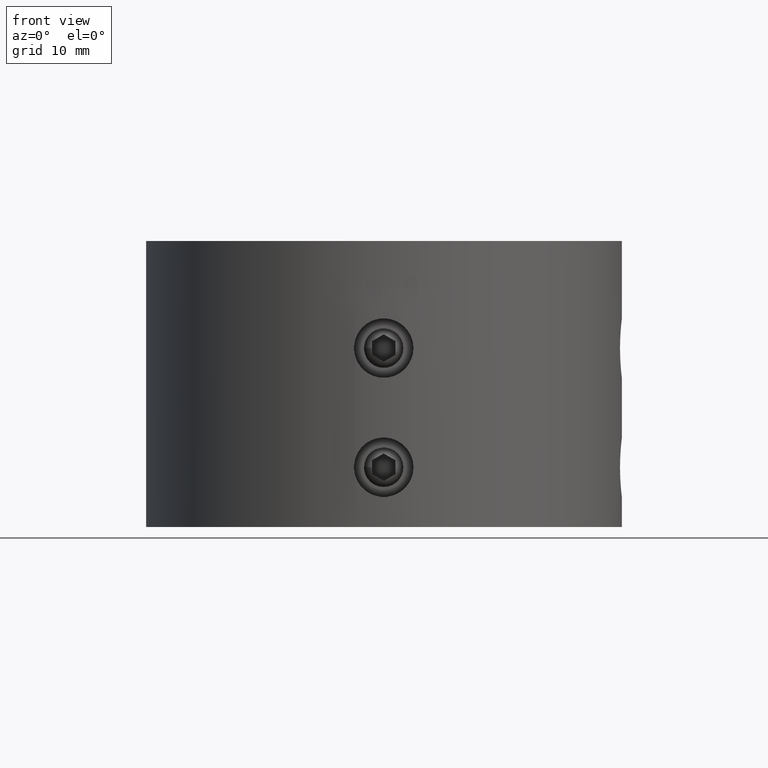
[diagram: clean part render]
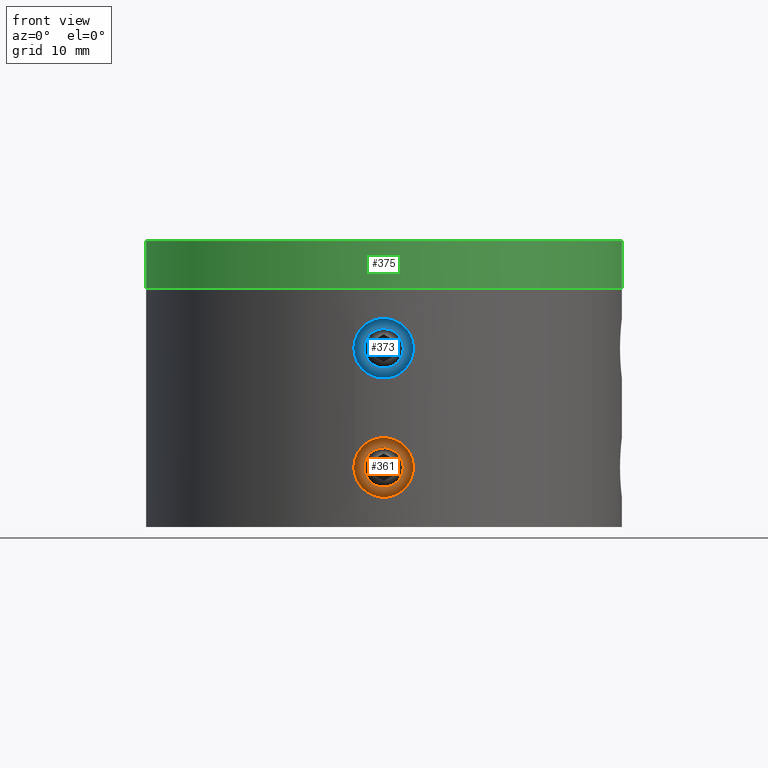
[diagram: same view with three faces highlighted in distinct colors, each labeled with its STEP entity id]
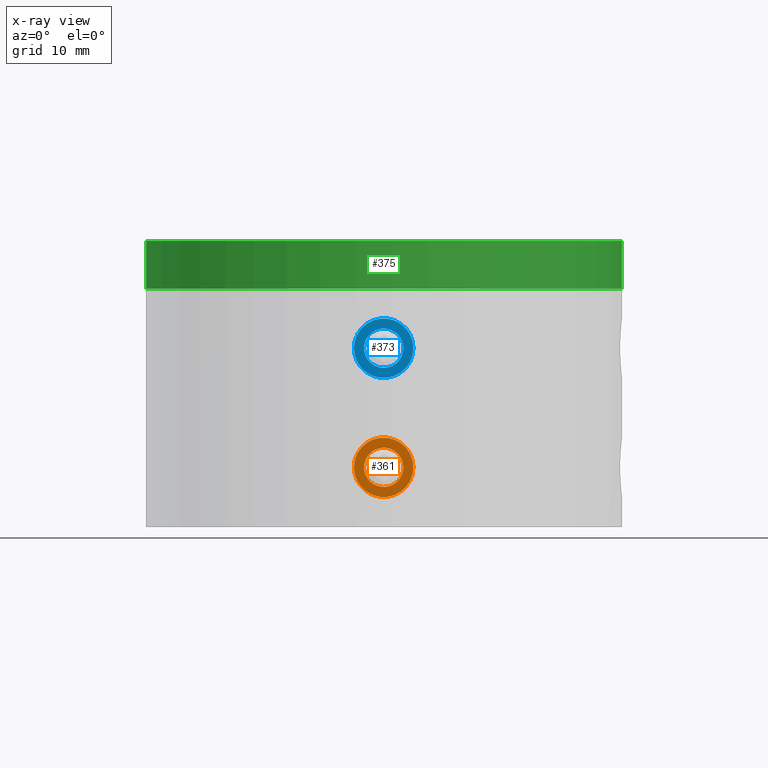
[diagram: x-ray of the same camera — body ghosted, the three highlighted faces saturated]
A machine part, front view with three faces highlighted in distinct colors.
The next image is the same camera in x-ray (body ghosted, the three faces saturated) — at least one of them is partly hidden behind the body in this view.
Their STEP definitions:

[orange] entity #361 — the highlighted planar face has unit normal (0, 1, 0).
#361 = ADVANCED_FACE( '', ( #440, #441 ), #442, .F. );
#440 = FACE_BOUND( '', #612, .T. );
#441 = FACE_OUTER_BOUND( '', #613, .T. );
#442 = PLANE( '', #614 );
#612 = EDGE_LOOP( '', ( #788 ) );
#613 = EDGE_LOOP( '', ( #789 ) );
#614 = AXIS2_PLACEMENT_3D( '', #790, #791, #792 );
#788 = ORIENTED_EDGE( '', *, *, #1193, .F. );
#789 = ORIENTED_EDGE( '', *, *, #1192, .F. );
#790 = CARTESIAN_POINT( '', ( 0.000000000000000, -15.0000000000000, -29.0000000000000 ) );
#791 = DIRECTION( '', ( 0.000000000000000, 1.00000000000000, 0.000000000000000 ) );
#792 = DIRECTION( '', ( 0.000000000000000, 0.000000000000000, -1.00000000000000 ) );
#1192 = EDGE_CURVE( '', #1310, #1310, #1311, .T. );
#1193 = EDGE_CURVE( '', #1312, #1312, #1313, .T. );
#1310 = VERTEX_POINT( '', #1754 );
#1311 = CIRCLE( '', #1755, 2.50000000000000 );
#1312 = VERTEX_POINT( '', #1756 );
#1313 = CIRCLE( '', #1757, 1.65000000000000 );
#1754 = CARTESIAN_POINT( '', ( 2.50000000000000, -15.0000000000000, -29.0000000000000 ) );
#1755 = AXIS2_PLACEMENT_3D( '', #2320, #2321, #2322 );
#1756 = CARTESIAN_POINT( '', ( 0.000000000000000, -15.0000000000000, -30.6500000000000 ) );
#1757 = AXIS2_PLACEMENT_3D( '', #2323, #2324, #2325 );
#2320 = CARTESIAN_POINT( '', ( 0.000000000000000, -15.0000000000000, -29.0000000000000 ) );
#2321 = DIRECTION( '', ( -0.000000000000000, 1.00000000000000, 0.000000000000000 ) );
#2322 = DIRECTION( '', ( 1.00000000000000, 0.000000000000000, 0.000000000000000 ) );
#2323 = CARTESIAN_POINT( '', ( 0.000000000000000, -15.0000000000000, -29.0000000000000 ) );
#2324 = DIRECTION( '', ( 0.000000000000000, -1.00000000000000, -0.000000000000000 ) );
#2325 = DIRECTION( '', ( 0.000000000000000, 0.000000000000000, -1.00000000000000 ) );

[blue] entity #373 — the highlighted planar face has unit normal (0, 1, 0).
#373 = ADVANCED_FACE( '', ( #480, #481 ), #482, .F. );
#480 = FACE_BOUND( '', #652, .T. );
#481 = FACE_OUTER_BOUND( '', #653, .T. );
#482 = PLANE( '', #654 );
#652 = EDGE_LOOP( '', ( #852 ) );
#653 = EDGE_LOOP( '', ( #853 ) );
#654 = AXIS2_PLACEMENT_3D( '', #854, #855, #856 );
#852 = ORIENTED_EDGE( '', *, *, #1201, .F. );
#853 = ORIENTED_EDGE( '', *, *, #1205, .F. );
#854 = CARTESIAN_POINT( '', ( 0.000000000000000, -15.0000000000000, -19.0000000000000 ) );
#855 = DIRECTION( '', ( 0.000000000000000, 1.00000000000000, 0.000000000000000 ) );
#856 = DIRECTION( '', ( 0.000000000000000, 0.000000000000000, -1.00000000000000 ) );
#1201 = EDGE_CURVE( '', #1328, #1328, #1329, .T. );
#1205 = EDGE_CURVE( '', #1336, #1336, #1337, .T. );
#1328 = VERTEX_POINT( '', #1984 );
#1329 = CIRCLE( '', #1985, 1.65000000000000 );
#1336 = VERTEX_POINT( '', #1992 );
#1337 = CIRCLE( '', #1993, 2.50000000000000 );
#1984 = CARTESIAN_POINT( '', ( 0.000000000000000, -15.0000000000000, -20.6500000000000 ) );
#1985 = AXIS2_PLACEMENT_3D( '', #2335, #2336, #2337 );
#1992 = CARTESIAN_POINT( '', ( 2.50000000000000, -15.0000000000000, -19.0000000000000 ) );
#1993 = AXIS2_PLACEMENT_3D( '', #2347, #2348, #2349 );
#2335 = CARTESIAN_POINT( '', ( 0.000000000000000, -15.0000000000000, -19.0000000000000 ) );
#2336 = DIRECTION( '', ( 0.000000000000000, -1.00000000000000, -0.000000000000000 ) );
#2337 = DIRECTION( '', ( 0.000000000000000, 0.000000000000000, -1.00000000000000 ) );
#2347 = CARTESIAN_POINT( '', ( 0.000000000000000, -15.0000000000000, -19.0000000000000 ) );
#2348 = DIRECTION( '', ( -0.000000000000000, 1.00000000000000, 0.000000000000000 ) );
#2349 = DIRECTION( '', ( 1.00000000000000, 0.000000000000000, 0.000000000000000 ) );

[green] entity #375 — the highlighted cylindrical surface (bore or boss wall) has radius 20 mm, axis along (-0, 0, -1).
#375 = ADVANCED_FACE( '', ( #486, #487 ), #488, .T. );
#486 = FACE_OUTER_BOUND( '', #658, .T. );
#487 = FACE_OUTER_BOUND( '', #659, .T. );
#488 = CYLINDRICAL_SURFACE( '', #660, 20.0000000000000 );
#658 = EDGE_LOOP( '', ( #862 ) );
#659 = EDGE_LOOP( '', ( #863 ) );
#660 = AXIS2_PLACEMENT_3D( '', #864, #865, #866 );
#862 = ORIENTED_EDGE( '', *, *, #1206, .T. );
#863 = ORIENTED_EDGE( '', *, *, #1207, .F. );
#864 = CARTESIAN_POINT( '', ( 0.000000000000000, 0.000000000000000, -14.0000000000000 ) );
#865 = DIRECTION( '', ( -0.000000000000000, 0.000000000000000, -1.00000000000000 ) );
#866 = DIRECTION( '', ( -1.00000000000000, 0.000000000000000, 0.000000000000000 ) );
#1206 = EDGE_CURVE( '', #1338, #1338, #1339, .T. );
#1207 = EDGE_CURVE( '', #1340, #1340, #1341, .T. );
#1338 = VERTEX_POINT( '', #1994 );
#1339 = CIRCLE( '', #1995, 20.0000000000000 );
#1340 = VERTEX_POINT( '', #1996 );
#1341 = CIRCLE( '', #1997, 20.0000000000000 );
#1994 = CARTESIAN_POINT( '', ( 20.0000000000000, 0.000000000000000, -14.0000000000000 ) );
#1995 = AXIS2_PLACEMENT_3D( '', #2350, #2351, #2352 );
#1996 = CARTESIAN_POINT( '', ( 20.0000000000000, 0.000000000000000, -10.0000000000000 ) );
#1997 = AXIS2_PLACEMENT_3D( '', #2353, #2354, #2355 );
#2350 = CARTESIAN_POINT( '', ( 0.000000000000000, 0.000000000000000, -14.0000000000000 ) );
#2351 = DIRECTION( '', ( 0.000000000000000, -0.000000000000000, 1.00000000000000 ) );
#2352 = DIRECTION( '', ( 1.00000000000000, 0.000000000000000, 0.000000000000000 ) );
#2353 = CARTESIAN_POINT( '', ( 0.000000000000000, 0.000000000000000, -10.0000000000000 ) );
#2354 = DIRECTION( '', ( 0.000000000000000, -0.000000000000000, 1.00000000000000 ) );
#2355 = DIRECTION( '', ( 1.00000000000000, 0.000000000000000, 0.000000000000000 ) );